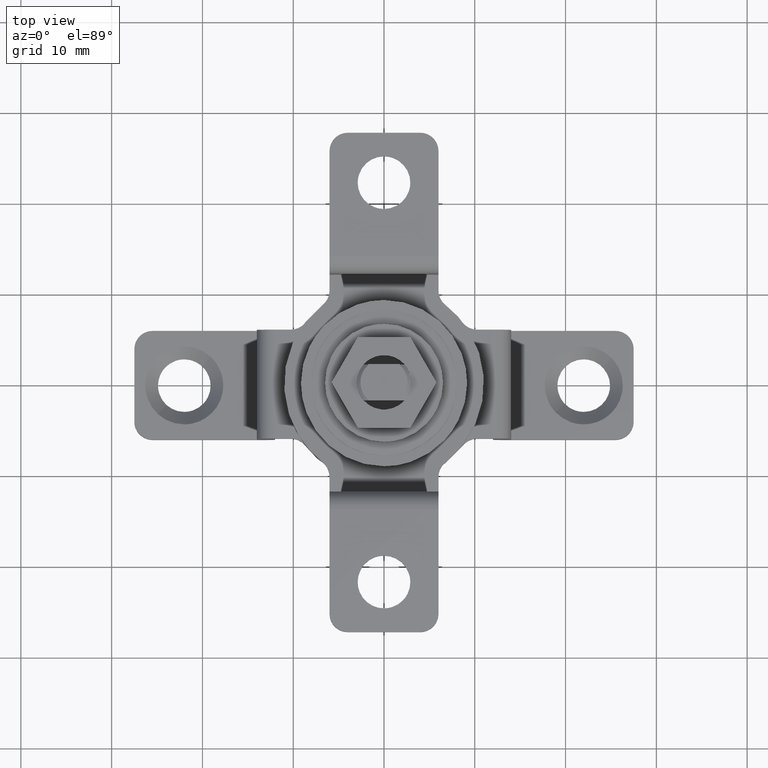
[diagram: clean part render]
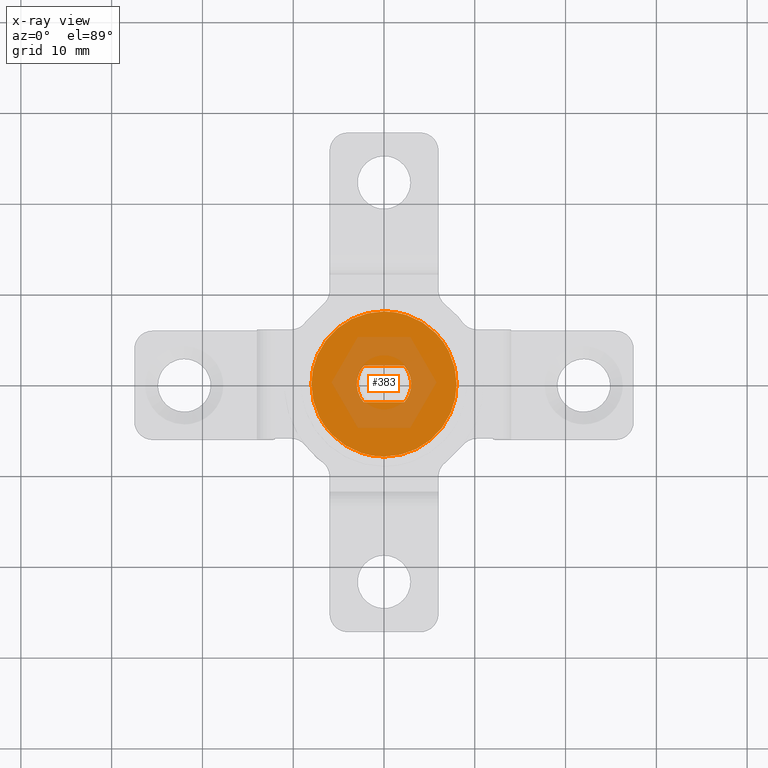
[diagram: x-ray — body ghosted, one internal face saturated and labeled with its STEP entity id]
A machine part, top view, then the same camera in x-ray: the body is ghosted and one INTERNAL B-rep face — a face not visible from any outside direction — is saturated and labeled: STEP entity #383.
In plain terms, the highlighted face is a freeform B-spline surface patch.
Its self-contained STEP definition (entity closure, byte-faithful):
#169=CARTESIAN_POINT('',(-2.236067977501220,1.999999999999685,10.0));
#170=VERTEX_POINT('',#169);
#177=CARTESIAN_POINT('',(-2.236067977501195,-2.000000000000330,10.0));
#178=VERTEX_POINT('',#177);
#184=CARTESIAN_POINT('',(-2.236067977501195,-2.000000000000330,10.0));
#185=CARTESIAN_POINT('',(-2.395745609582619,-1.821568590079832,9.999999999999995));
#186=CARTESIAN_POINT('',(-2.612746951766894,-1.510894900372440,10.000000000000020));
#187=CARTESIAN_POINT('',(-2.874871347741944,-0.927008340536371,9.999999999999996));
#188=CARTESIAN_POINT('',(-3.009290240057133,-0.332516150492782,10.000000000000011));
#189=CARTESIAN_POINT('',(-3.001898919773303,0.309339394023685,10.000000000000011));
#190=CARTESIAN_POINT('',(-2.902075673157226,0.802861508353688,9.999999999999975));
#191=CARTESIAN_POINT('',(-2.691871647458092,1.382883348396717,10.000000000000011));
#192=CARTESIAN_POINT('',(-2.449073527562302,1.762148833566307,9.999999999999991));
#193=CARTESIAN_POINT('',(-2.236067977501220,1.999999999999685,10.0));
#194=B_SPLINE_CURVE_WITH_KNOTS('',3,(#184,#185,#186,#187,#188,#189,#190,#191,#192,#193),.UNSPECIFIED.,.F.,.U.,(4,1,1,1,1,1,1,4),(0.000000052933461,0.718321930408850,1.128804075872571,1.915555798505452,2.531241598632458,3.044347936103272,3.420617381236664,4.378389653371746),.UNSPECIFIED.);
#195=EDGE_CURVE('',#178,#170,#194,.T.);
#208=CARTESIAN_POINT('',(2.236067977498380,1.999999999999685,10.0));
#209=VERTEX_POINT('',#208);
#210=CARTESIAN_POINT('',(2.236067977498380,1.999999999999685,10.0));
#211=CARTESIAN_POINT('',(-2.236067977501220,1.999999999999685,10.0));
#212=QUASI_UNIFORM_CURVE('',1,(#210,#211),.UNSPECIFIED.,.F.,.U.);
#213=EDGE_CURVE('',#209,#170,#212,.T.);
#238=CARTESIAN_POINT('',(2.236067977498360,-2.000000000000330,10.0));
#239=VERTEX_POINT('',#238);
#247=CARTESIAN_POINT('',(2.236067977498380,1.999999999999685,10.0));
#248=CARTESIAN_POINT('',(2.426209825817414,1.787610044802928,10.000000000000011));
#249=CARTESIAN_POINT('',(2.662137304729134,1.432725924739118,9.999999999999970));
#250=CARTESIAN_POINT('',(2.876285649946250,0.890619134888712,10.000000000000030));
#251=CARTESIAN_POINT('',(2.997885841492754,0.366941828002999,9.999999999999949));
#252=CARTESIAN_POINT('',(3.013575719605870,-0.184046740101283,10.0));
#253=CARTESIAN_POINT('',(2.910085850106075,-0.804321721097857,10.000000000000030));
#254=CARTESIAN_POINT('',(2.684048762221099,-1.406381283469748,10.000000000000011));
#255=CARTESIAN_POINT('',(2.403344646361620,-1.813069693842112,9.999999999999996));
#256=CARTESIAN_POINT('',(2.236067977498360,-2.000000000000330,10.0));
#257=B_SPLINE_CURVE_WITH_KNOTS('',3,(#247,#248,#249,#250,#251,#252,#253,#254,#255,#256),.UNSPECIFIED.,.F.,.U.,(4,1,1,1,1,1,1,4),(0.000000052932998,0.855153135883789,1.265631303184262,1.744527264955213,2.462833907799606,2.907516730627859,3.625857567376322,4.378389653371751),.UNSPECIFIED.);
#258=EDGE_CURVE('',#209,#239,#257,.T.);
#273=CARTESIAN_POINT('',(-2.236067977501195,-2.000000000000330,10.0));
#274=CARTESIAN_POINT('',(2.236067977498360,-2.000000000000330,10.0));
#275=QUASI_UNIFORM_CURVE('',1,(#273,#274),.UNSPECIFIED.,.F.,.U.);
#276=EDGE_CURVE('',#178,#239,#275,.T.);
#281=CARTESIAN_POINT('',(-8.799199968988528,-8.799199968988519,10.0));
#282=CARTESIAN_POINT('',(8.799200398142023,-8.799199968988519,10.0));
#283=CARTESIAN_POINT('',(-8.799199968988528,8.799200398141965,10.0));
#284=CARTESIAN_POINT('',(8.799200398142023,8.799200398141965,10.0));
#285=B_SPLINE_SURFACE_WITH_KNOTS('',1,1,((#281,#283),(#282,#284)),.UNSPECIFIED.,.F.,.F.,.U.,(2,2),(2,2),(0.0,17.598400367130552),(0.0,17.598400367130481),.UNSPECIFIED.);
#286=CARTESIAN_POINT('',(0.000000690382217,-7.999999999999660,9.999999999999998));
#287=VERTEX_POINT('',#286);
#288=CARTESIAN_POINT('',(7.999999999999714,0.0,10.0));
#289=VERTEX_POINT('',#288);
#290=CARTESIAN_POINT('',(0.000000690382217,-7.999999999999660,9.999999999999998));
#291=CARTESIAN_POINT('',(0.490877506618089,-8.000052170862892,10.000000000000050));
#292=CARTESIAN_POINT('',(1.407155176493679,-7.915397810347240,9.999999999999957));
#293=CARTESIAN_POINT('',(2.659035239451721,-7.577211861814034,10.000000000000030));
#294=CARTESIAN_POINT('',(3.770247845835505,-7.088719302626079,9.999999999999947));
#295=CARTESIAN_POINT('',(4.742651503579835,-6.477115534708104,10.000000000000091));
#296=CARTESIAN_POINT('',(5.591522854418961,-5.753893154518888,9.999999999999879));
#297=CARTESIAN_POINT('',(6.381658405210720,-4.876755396399803,10.000000000000030));
#298=CARTESIAN_POINT('',(7.056707840685560,-3.846103088256579,9.999999999999986));
#299=CARTESIAN_POINT('',(7.518957145344865,-2.794461495427735,10.000000000000011));
#300=CARTESIAN_POINT('',(7.891723375823358,-1.538006291764996,9.999999999999996));
#301=CARTESIAN_POINT('',(8.000168774291760,-0.638153303648414,10.000000000000020));
#302=CARTESIAN_POINT('',(7.999999999999714,0.0,10.0));
#303=B_SPLINE_CURVE_WITH_KNOTS('',3,(#290,#291,#292,#293,#294,#295,#296,#297,#298,#299,#300,#301,#302),.UNSPECIFIED.,.F.,.U.,(4,1,1,1,1,1,1,1,1,1,4),(0.000000034117047,1.472621217284910,2.748895246628305,3.877915061374456,5.105099607727375,6.185032544892030,7.215856329581324,8.639387209473838,9.866582851109923,10.651987715039301,12.566389938236480),.UNSPECIFIED.);
#304=EDGE_CURVE('',#287,#289,#303,.T.);
#305=ORIENTED_EDGE('',*,*,#304,.F.);
#306=CARTESIAN_POINT('',(-5.706003484464519,-5.607273978874698,9.999999999997471));
#307=VERTEX_POINT('',#306);
#308=CARTESIAN_POINT('',(-5.706003484464519,-5.607273978874698,9.999999999997471));
#309=CARTESIAN_POINT('',(-5.404527771517090,-5.914102267910721,9.999999999997593));
#310=CARTESIAN_POINT('',(-4.839754935675491,-6.402889559918584,9.999999999997922));
#311=CARTESIAN_POINT('',(-3.893331713830410,-7.014717178565480,9.999999999998245));
#312=CARTESIAN_POINT('',(-3.009448196292946,-7.434716582077452,9.999999999998607));
#313=CARTESIAN_POINT('',(-2.034258866975570,-7.757354350632784,9.999999999999185));
#314=CARTESIAN_POINT('',(-1.058831181359865,-7.953591023553728,9.999999999999552));
#315=CARTESIAN_POINT('',(-0.347428564942405,-8.000010728444373,9.999999999999780));
#316=CARTESIAN_POINT('',(0.000000690382217,-7.999999999999660,9.999999999999998));
#317=B_SPLINE_CURVE_WITH_KNOTS('',3,(#308,#309,#310,#311,#312,#313,#314,#315,#316),.UNSPECIFIED.,.F.,.U.,(4,1,1,1,1,1,4),(8.993831E-009,1.290454463697691,2.233480979692844,3.375027528920178,4.218793196572205,5.310720772807520,6.353009308252656),.UNSPECIFIED.);
#318=EDGE_CURVE('',#307,#287,#317,.T.);
#319=ORIENTED_EDGE('',*,*,#318,.F.);
#320=CARTESIAN_POINT('',(-7.999999999999665,0.0,10.0));
#321=VERTEX_POINT('',#320);
#322=CARTESIAN_POINT('',(-7.999999999999665,0.0,10.0));
#323=CARTESIAN_POINT('',(-8.000024265174163,-0.404517422707214,9.999999999999794));
#324=CARTESIAN_POINT('',(-7.945880821766918,-1.116460305901832,9.999999999999510));
#325=CARTESIAN_POINT('',(-7.723581702563334,-2.162802554825204,9.999999999999043));
#326=CARTESIAN_POINT('',(-7.335858191088216,-3.281339970403523,9.999999999998497));
#327=CARTESIAN_POINT('',(-6.684086339976812,-4.481343062784022,9.999999999998058));
#328=CARTESIAN_POINT('',(-6.046269688471880,-5.261077547024716,9.999999999997584));
#329=CARTESIAN_POINT('',(-5.706003484464519,-5.607273978874698,9.999999999997471));
#330=B_SPLINE_CURVE_WITH_KNOTS('',3,(#322,#323,#324,#325,#326,#327,#328,#329),.UNSPECIFIED.,.F.,.U.,(4,1,1,1,1,4),(8.570568E-009,1.213550452972990,2.135853202645858,3.203770145824018,4.757120649618965,6.213381581241946),.UNSPECIFIED.);
#331=EDGE_CURVE('',#321,#307,#330,.T.);
#332=ORIENTED_EDGE('',*,*,#331,.F.);
#333=CARTESIAN_POINT('',(-0.000000690382110,7.999999999999661,10.0));
#334=VERTEX_POINT('',#333);
#335=CARTESIAN_POINT('',(-0.000000690382110,7.999999999999661,10.0));
#336=CARTESIAN_POINT('',(-0.589058335861230,8.000112479796005,9.999999999999986));
#337=CARTESIAN_POINT('',(-1.472576741097588,7.901952579539335,10.000000000000050));
#338=CARTESIAN_POINT('',(-2.781218414136522,7.531127726176600,10.000000000000030));
#339=CARTESIAN_POINT('',(-3.906053982517954,7.028440646945668,9.999999999999918));
#340=CARTESIAN_POINT('',(-4.966740809622152,6.310205212097725,10.000000000000149));
#341=CARTESIAN_POINT('',(-5.846175848656873,5.498254471148022,9.999999999999963));
#342=CARTESIAN_POINT('',(-6.501901369950535,4.699247308449748,10.000000000000020));
#343=CARTESIAN_POINT('',(-7.040187010138584,3.837527756091006,9.999999999999991));
#344=CARTESIAN_POINT('',(-7.495796779201478,2.874273294572288,10.0));
#345=CARTESIAN_POINT('',(-7.890596318281538,1.587128020853066,10.000000000000060));
#346=CARTESIAN_POINT('',(-8.000092044657743,0.572689984427312,9.999999999999838));
#347=CARTESIAN_POINT('',(-7.999999999999665,0.0,10.0));
#348=B_SPLINE_CURVE_WITH_KNOTS('',3,(#335,#336,#337,#338,#339,#340,#341,#342,#343,#344,#345,#346,#347),.UNSPECIFIED.,.F.,.U.,(4,1,1,1,1,1,1,1,1,1,4),(0.000000034117054,1.767140027788342,2.650719881933478,4.074263200731895,5.448708622232406,6.479526428436380,7.657637238954576,8.541212143828275,9.522968030869720,10.848333634146080,12.566389938236510),.UNSPECIFIED.);
#349=EDGE_CURVE('',#334,#321,#348,.T.);
#350=ORIENTED_EDGE('',*,*,#349,.F.);
#351=CARTESIAN_POINT('',(5.706003484464580,5.607273978874709,9.999999999997471));
#352=VERTEX_POINT('',#351);
#353=CARTESIAN_POINT('',(5.706003484464580,5.607273978874709,9.999999999997471));
#354=CARTESIAN_POINT('',(5.358160806741386,5.961324222116155,9.999999999997632));
#355=CARTESIAN_POINT('',(4.723237371119628,6.497134527780264,9.999999999997893));
#356=CARTESIAN_POINT('',(3.689087184934321,7.125447473724122,9.999999999998384));
#357=CARTESIAN_POINT('',(2.822989646773690,7.504517690693795,9.999999999998735));
#358=CARTESIAN_POINT('',(1.588176721174779,7.883573130044083,9.999999999999309));
#359=CARTESIAN_POINT('',(0.678341008471534,8.000200378879542,9.999999999999696));
#360=CARTESIAN_POINT('',(-0.000000690382110,7.999999999999661,10.0));
#361=B_SPLINE_CURVE_WITH_KNOTS('',3,(#353,#354,#355,#356,#357,#358,#359,#360),.UNSPECIFIED.,.F.,.U.,(4,1,1,1,1,4),(8.993779E-009,1.488986207647529,2.481647692572815,3.623194981075579,4.318058294291332,6.353009308252602),.UNSPECIFIED.);
#362=EDGE_CURVE('',#352,#334,#361,.T.);
#363=ORIENTED_EDGE('',*,*,#362,.F.);
#364=CARTESIAN_POINT('',(7.999999999999714,0.0,10.0));
#365=CARTESIAN_POINT('',(8.000051008133374,0.485424137409317,9.999999999999758));
#366=CARTESIAN_POINT('',(7.932036838742406,1.229714165387648,9.999999999999480));
#367=CARTESIAN_POINT('',(7.687670753369284,2.270595961638213,9.999999999998945));
#368=CARTESIAN_POINT('',(7.314942416484245,3.325198433211744,9.999999999998506));
#369=CARTESIAN_POINT('',(6.674952557376522,4.495044086532087,9.999999999997938));
#370=CARTESIAN_POINT('',(6.034918637631532,5.272611271429168,9.999999999997872));
#371=CARTESIAN_POINT('',(5.706003484464580,5.607273978874709,9.999999999997471));
#372=B_SPLINE_CURVE_WITH_KNOTS('',3,(#364,#365,#366,#367,#368,#369,#370,#371),.UNSPECIFIED.,.F.,.U.,(4,1,1,1,1,4),(8.570671E-009,1.456260940194686,2.232936413454533,3.203770145824393,4.805663180401200,6.213381581241936),.UNSPECIFIED.);
#373=EDGE_CURVE('',#289,#352,#372,.T.);
#374=ORIENTED_EDGE('',*,*,#373,.F.);
#375=EDGE_LOOP('',(#305,#319,#332,#350,#363,#374));
#376=FACE_OUTER_BOUND('',#375,.T.);
#377=ORIENTED_EDGE('',*,*,#195,.F.);
#378=ORIENTED_EDGE('',*,*,#276,.T.);
#379=ORIENTED_EDGE('',*,*,#258,.F.);
#380=ORIENTED_EDGE('',*,*,#213,.T.);
#381=EDGE_LOOP('',(#377,#378,#379,#380));
#382=FACE_BOUND('',#381,.T.);
#383=ADVANCED_FACE('',(#376,#382),#285,.F.);